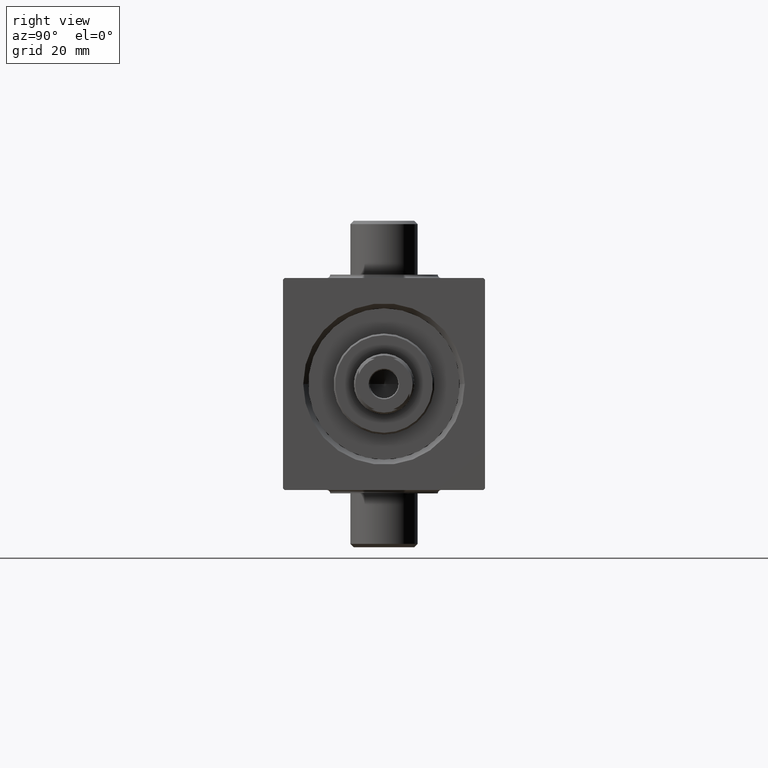
[diagram: clean part render]
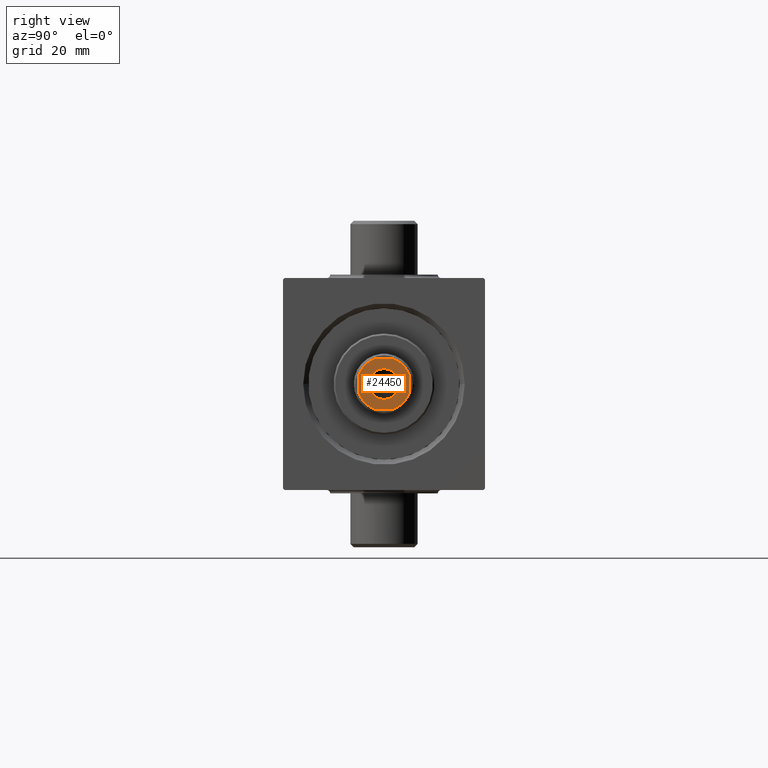
[diagram: same view with one face highlighted and labeled with its STEP entity id]
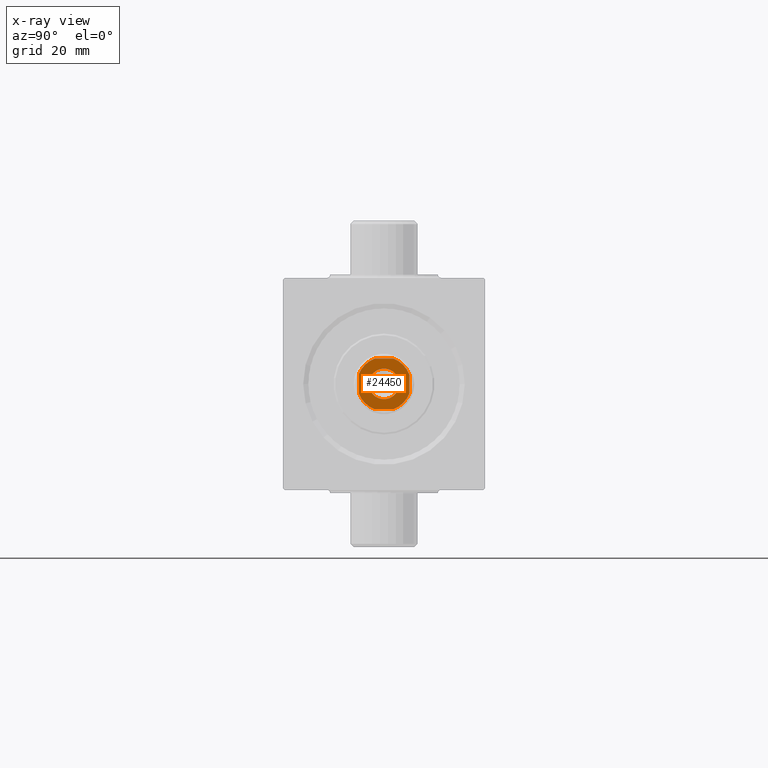
[diagram: x-ray of the same camera — body ghosted, the highlighted face saturated]
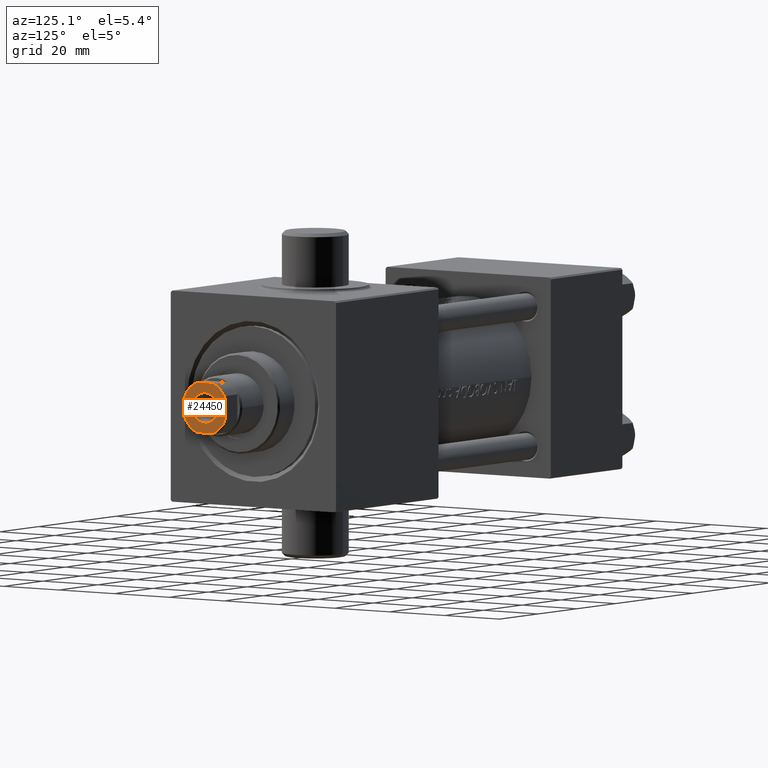
[diagram: same view with one face highlighted and labeled with its STEP entity id]
A machine part, right view. The second image highlights one B-rep face of the part: STEP entity #24450.
The next image is the same camera in x-ray: the body ghosted, the highlighted face saturated — about 0% of this face is hidden behind the body in this view.
A second angle (auxiliary view) of the same face is appended — the face is thin or edge-on in the first view.
In plain terms, the highlighted planar face has unit normal (1, 0, 0).
Its self-contained STEP definition (entity closure, byte-faithful):
#20 = AXIS2_PLACEMENT_3D ( 'NONE', #20042, #9040, #16778 ) ;
#328 = ORIENTED_EDGE ( 'NONE', *, *, #28057, .T. ) ;
#774 = EDGE_LOOP ( 'NONE', ( #26418, #328 ) ) ;
#1149 = CARTESIAN_POINT ( 'NONE',  ( 2.783882181415129331, 7.499999999999999112, 136.0000000000000000 ) ) ;
#1371 = CARTESIAN_POINT ( 'NONE',  ( 0.000000000000000000, 0.000000000000000000, 136.0000000000000000 ) ) ;
#1426 = AXIS2_PLACEMENT_3D ( 'NONE', #13905, #42265, #24915 ) ;
#2330 = LINE ( 'NONE', #35267, #35437 ) ;
#3132 = ORIENTED_EDGE ( 'NONE', *, *, #31228, .T. ) ;
#3801 = DIRECTION ( 'NONE',  ( 1.000000000000000000, 0.000000000000000000, 0.000000000000000000 ) ) ;
#5696 = EDGE_CURVE ( 'NONE', #23757, #27108, #14139, .T. ) ;
#5843 = VERTEX_POINT ( 'NONE', #13183 ) ;
#7541 = ORIENTED_EDGE ( 'NONE', *, *, #24449, .T. ) ;
#7959 = EDGE_CURVE ( 'NONE', #32796, #18445, #41164, .T. ) ;
#8150 = DIRECTION ( 'NONE',  ( 1.000000000000000000, 0.000000000000000000, 0.000000000000000000 ) ) ;
#8208 = CARTESIAN_POINT ( 'NONE',  ( -2.783882181414960577, 7.499999999999999112, 136.0000000000000000 ) ) ;
#9040 = DIRECTION ( 'NONE',  ( -0.000000000000000000, 0.000000000000000000, 1.000000000000000000 ) ) ;
#10118 = DIRECTION ( 'NONE',  ( 1.156482317317871725E-16, -1.000000000000000000, 0.000000000000000000 ) ) ;
#11315 = VERTEX_POINT ( 'NONE', #13772 ) ;
#11675 = CARTESIAN_POINT ( 'NONE',  ( 0.000000000000000000, 0.000000000000000000, 136.0000000000000000 ) ) ;
#11775 = CARTESIAN_POINT ( 'NONE',  ( 4.549999999999970512, 0.000000000000000000, 136.0000000000000000 ) ) ;
#11992 = ORIENTED_EDGE ( 'NONE', *, *, #25918, .T. ) ;
#12208 = LINE ( 'NONE', #34438, #20731 ) ;
#13183 = CARTESIAN_POINT ( 'NONE',  ( 2.783882181415132440, -7.500000000000000000, 136.0000000000000000 ) ) ;
#13772 = CARTESIAN_POINT ( 'NONE',  ( -7.499999999999999112, 2.783882181414961021, 136.0000000000000000 ) ) ;
#13782 = VERTEX_POINT ( 'NONE', #8208 ) ;
#13905 = CARTESIAN_POINT ( 'NONE',  ( 0.000000000000000000, 0.000000000000000000, 136.0000000000000000 ) ) ;
#14139 = CIRCLE ( 'NONE', #32113, 7.999999999999979572 ) ;
#14760 = ORIENTED_EDGE ( 'NONE', *, *, #39586, .T. ) ;
#14780 = CIRCLE ( 'NONE', #43985, 7.999999999999981348 ) ;
#14808 = CARTESIAN_POINT ( 'NONE',  ( -2.783882181414952139, -7.500000000000000000, 136.0000000000000000 ) ) ;
#16599 = DIRECTION ( 'NONE',  ( 1.000000000000000000, 0.000000000000000000, 0.000000000000000000 ) ) ;
#16634 = DIRECTION ( 'NONE',  ( -0.000000000000000000, 0.000000000000000000, 1.000000000000000000 ) ) ;
#16778 = DIRECTION ( 'NONE',  ( 1.000000000000000000, 0.000000000000000000, 0.000000000000000000 ) ) ;
#17139 = LINE ( 'NONE', #31445, #39036 ) ;
#17157 = CIRCLE ( 'NONE', #20, 8.000000000000040856 ) ;
#17392 = CARTESIAN_POINT ( 'NONE',  ( 0.000000000000000000, 0.000000000000000000, 136.0000000000000000 ) ) ;
#17729 = DIRECTION ( 'NONE',  ( -1.156482317317871478E-16, 1.000000000000000000, -0.000000000000000000 ) ) ;
#18445 = VERTEX_POINT ( 'NONE', #20808 ) ;
#18464 = DIRECTION ( 'NONE',  ( 1.000000000000000000, 0.000000000000000000, 0.000000000000000000 ) ) ;
#19088 = ORIENTED_EDGE ( 'NONE', *, *, #5696, .T. ) ;
#19446 = FACE_OUTER_BOUND ( 'NONE', #42407, .T. ) ;
#20042 = CARTESIAN_POINT ( 'NONE',  ( 0.000000000000000000, 0.000000000000000000, 136.0000000000000000 ) ) ;
#20634 = EDGE_CURVE ( 'NONE', #27108, #5843, #2330, .T. ) ;
#20731 = VECTOR ( 'NONE', #30248, 1000.000000000000000 ) ;
#20808 = CARTESIAN_POINT ( 'NONE',  ( -4.549999999999970512, 5.572142936120421828E-16, 136.0000000000000000 ) ) ;
#20828 = CIRCLE ( 'NONE', #1426, 4.549999999999970512 ) ;
#21055 = VECTOR ( 'NONE', #17729, 1000.000000000000000 ) ;
#21242 = CARTESIAN_POINT ( 'NONE',  ( 7.500000000000000000, 7.500000000000000000, 136.0000000000000000 ) ) ;
#21355 = DIRECTION ( 'NONE',  ( -0.000000000000000000, 0.000000000000000000, 1.000000000000000000 ) ) ;
#23757 = VERTEX_POINT ( 'NONE', #42087 ) ;
#23893 = CARTESIAN_POINT ( 'NONE',  ( 0.000000000000000000, 0.000000000000000000, 136.0000000000000000 ) ) ;
#24449 = EDGE_CURVE ( 'NONE', #35443, #13782, #12208, .T. ) ;
#24450 = ADVANCED_FACE ( 'NONE', ( #33990, #19446 ), #30466, .T. ) ;
#24915 = DIRECTION ( 'NONE',  ( 1.000000000000000000, 0.000000000000000000, 0.000000000000000000 ) ) ;
#25518 = AXIS2_PLACEMENT_3D ( 'NONE', #1371, #40732, #18464 ) ;
#25797 = ORIENTED_EDGE ( 'NONE', *, *, #20634, .T. ) ;
#25918 = EDGE_CURVE ( 'NONE', #13782, #11315, #14780, .T. ) ;
#25960 = DIRECTION ( 'NONE',  ( 0.000000000000000000, -0.000000000000000000, -1.000000000000000000 ) ) ;
#26418 = ORIENTED_EDGE ( 'NONE', *, *, #7959, .T. ) ;
#26951 = DIRECTION ( 'NONE',  ( 1.000000000000000000, 0.000000000000000000, 0.000000000000000000 ) ) ;
#27108 = VERTEX_POINT ( 'NONE', #14808 ) ;
#27516 = AXIS2_PLACEMENT_3D ( 'NONE', #23893, #16634, #26951 ) ;
#28057 = EDGE_CURVE ( 'NONE', #18445, #32796, #20828, .T. ) ;
#30248 = DIRECTION ( 'NONE',  ( -1.000000000000000000, -1.156482317317871478E-16, -0.000000000000000000 ) ) ;
#30466 = PLANE ( 'NONE',  #27516 ) ;
#31228 = EDGE_CURVE ( 'NONE', #35762, #35443, #17157, .T. ) ;
#31445 = CARTESIAN_POINT ( 'NONE',  ( -7.500000000000000000, 7.499999999999998224, 136.0000000000000000 ) ) ;
#31803 = DIRECTION ( 'NONE',  ( -0.000000000000000000, 0.000000000000000000, 1.000000000000000000 ) ) ;
#32038 = LINE ( 'NONE', #21242, #21055 ) ;
#32113 = AXIS2_PLACEMENT_3D ( 'NONE', #35540, #31803, #43254 ) ;
#32796 = VERTEX_POINT ( 'NONE', #11775 ) ;
#32932 = AXIS2_PLACEMENT_3D ( 'NONE', #11675, #25960, #8150 ) ;
#33927 = CARTESIAN_POINT ( 'NONE',  ( 7.500000000000000888, -2.783882181415129331, 136.0000000000000000 ) ) ;
#33990 = FACE_BOUND ( 'NONE', #774, .T. ) ;
#33998 = EDGE_CURVE ( 'NONE', #5843, #42840, #40479, .T. ) ;
#34438 = CARTESIAN_POINT ( 'NONE',  ( -7.500000000000000000, 7.499999999999998224, 136.0000000000000000 ) ) ;
#35267 = CARTESIAN_POINT ( 'NONE',  ( -7.499999999999998224, -7.500000000000000000, 136.0000000000000000 ) ) ;
#35437 = VECTOR ( 'NONE', #16599, 1000.000000000000000 ) ;
#35443 = VERTEX_POINT ( 'NONE', #1149 ) ;
#35540 = CARTESIAN_POINT ( 'NONE',  ( 0.000000000000000000, 0.000000000000000000, 136.0000000000000000 ) ) ;
#35762 = VERTEX_POINT ( 'NONE', #40679 ) ;
#36380 = ORIENTED_EDGE ( 'NONE', *, *, #33998, .T. ) ;
#36573 = EDGE_CURVE ( 'NONE', #42840, #35762, #32038, .T. ) ;
#39036 = VECTOR ( 'NONE', #10118, 1000.000000000000000 ) ;
#39586 = EDGE_CURVE ( 'NONE', #11315, #23757, #17139, .T. ) ;
#40479 = CIRCLE ( 'NONE', #25518, 8.000000000000042633 ) ;
#40679 = CARTESIAN_POINT ( 'NONE',  ( 7.500000000000000888, 2.783882181415126222, 136.0000000000000000 ) ) ;
#40732 = DIRECTION ( 'NONE',  ( -0.000000000000000000, 0.000000000000000000, 1.000000000000000000 ) ) ;
#40876 = ORIENTED_EDGE ( 'NONE', *, *, #36573, .T. ) ;
#41164 = CIRCLE ( 'NONE', #32932, 4.549999999999970512 ) ;
#42087 = CARTESIAN_POINT ( 'NONE',  ( -7.499999999999997335, -2.783882181414957468, 136.0000000000000000 ) ) ;
#42265 = DIRECTION ( 'NONE',  ( 0.000000000000000000, -0.000000000000000000, -1.000000000000000000 ) ) ;
#42407 = EDGE_LOOP ( 'NONE', ( #40876, #3132, #7541, #11992, #14760, #19088, #25797, #36380 ) ) ;
#42840 = VERTEX_POINT ( 'NONE', #33927 ) ;
#43254 = DIRECTION ( 'NONE',  ( 1.000000000000000000, 0.000000000000000000, 0.000000000000000000 ) ) ;
#43985 = AXIS2_PLACEMENT_3D ( 'NONE', #17392, #21355, #3801 ) ;